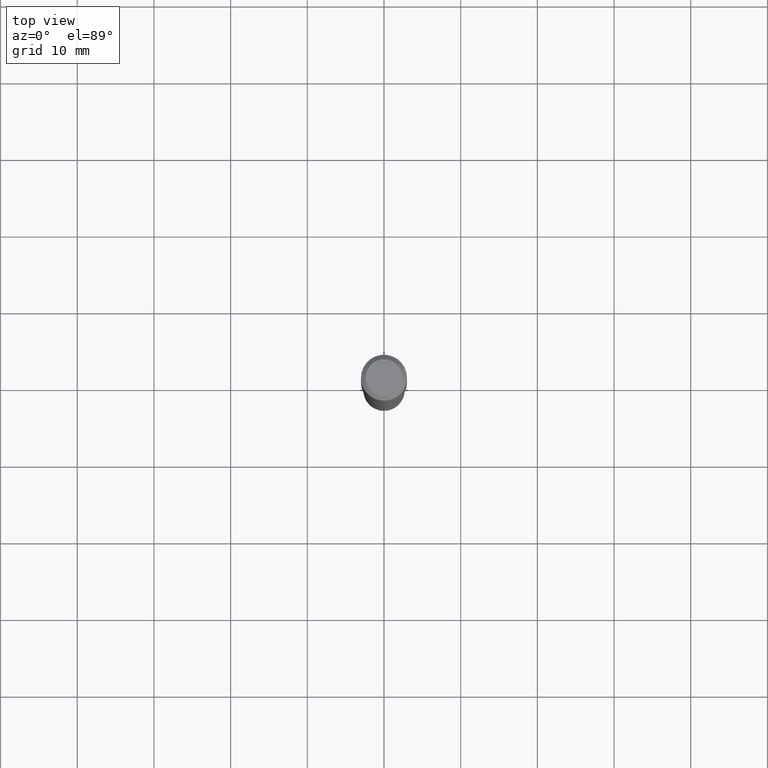
[diagram: clean part render]
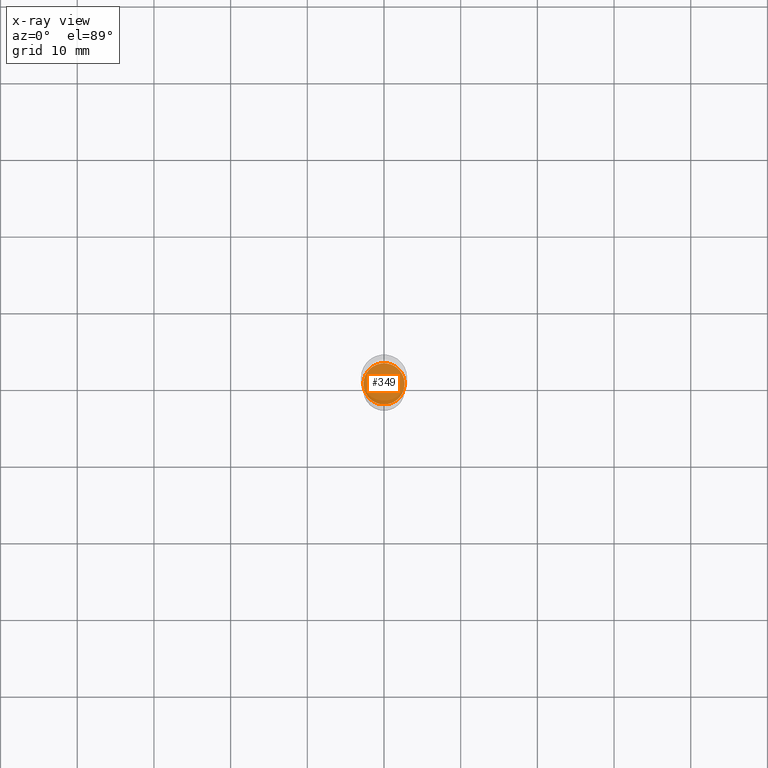
[diagram: x-ray — body ghosted, one internal face saturated and labeled with its STEP entity id]
A machine part, top view, then the same camera in x-ray: the body is ghosted and one INTERNAL B-rep face — a face not visible from any outside direction — is saturated and labeled: STEP entity #349.
In plain terms, the highlighted planar face has unit normal (-0, 0, 1).
Its self-contained STEP definition (entity closure, byte-faithful):
#25 = DIRECTION ( 'NONE',  ( 1.000000000000000000, -6.982962677686264344E-15, 0.000000000000000000 ) ) ;
#30 = CARTESIAN_POINT ( 'NONE',  ( -0.1058000000000000052, -5.706233627787060342E-15, -1.850400000000000489 ) ) ;
#43 = EDGE_LOOP ( 'NONE', ( #351, #428 ) ) ;
#94 = CIRCLE ( 'NONE', #262, 0.1058000000000000052 ) ;
#100 = DIRECTION ( 'NONE',  ( -2.445468806185136597E-29, 3.491481338843145583E-15, 1.000000000000000000 ) ) ;
#144 = CARTESIAN_POINT ( 'NONE',  ( 1.188710145161459842E-29, -1.123853076266223268E-14, -1.850400000000000489 ) ) ;
#153 = DIRECTION ( 'NONE',  ( 1.000000000000000000, -6.982962677686265922E-15, 4.876176775795935793E-29 ) ) ;
#175 = VERTEX_POINT ( 'NONE', #319 ) ;
#177 = CIRCLE ( 'NONE', #323, 0.1058000000000000052 ) ;
#184 = CARTESIAN_POINT ( 'NONE',  ( 4.525095478964977954E-29, -6.460637069395358365E-15, -1.850400000000000489 ) ) ;
#223 = EDGE_CURVE ( 'NONE', #175, #342, #94, .T. ) ;
#227 = AXIS2_PLACEMENT_3D ( 'NONE', #144, #484, #153 ) ;
#262 = AXIS2_PLACEMENT_3D ( 'NONE', #184, #292, #25 ) ;
#292 = DIRECTION ( 'NONE',  ( -2.445468806185136597E-29, 3.491481338843145583E-15, 1.000000000000000000 ) ) ;
#305 = DIRECTION ( 'NONE',  ( 1.000000000000000000, -6.982962677686264344E-15, 0.000000000000000000 ) ) ;
#319 = CARTESIAN_POINT ( 'NONE',  ( 0.1058000000000000052, -7.199434520694564708E-15, -1.850400000000000489 ) ) ;
#323 = AXIS2_PLACEMENT_3D ( 'NONE', #432, #100, #305 ) ;
#334 = PLANE ( 'NONE',  #227 ) ;
#342 = VERTEX_POINT ( 'NONE', #30 ) ;
#349 = ADVANCED_FACE ( 'NONE', ( #474 ), #334, .F. ) ;
#351 = ORIENTED_EDGE ( 'NONE', *, *, #223, .F. ) ;
#365 = EDGE_CURVE ( 'NONE', #342, #175, #177, .T. ) ;
#428 = ORIENTED_EDGE ( 'NONE', *, *, #365, .F. ) ;
#432 = CARTESIAN_POINT ( 'NONE',  ( 4.525095478964977954E-29, -6.460637069395358365E-15, -1.850400000000000489 ) ) ;
#474 = FACE_OUTER_BOUND ( 'NONE', #43, .T. ) ;
#484 = DIRECTION ( 'NONE',  ( -2.438088387897960049E-29, 3.491481338843145188E-15, 1.000000000000000000 ) ) ;